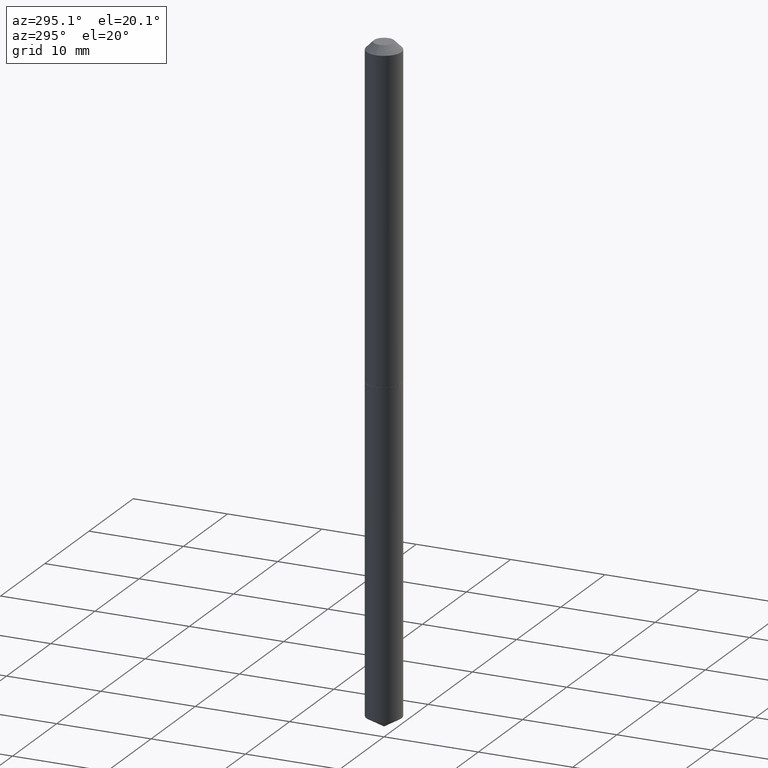
[diagram: clean part render]
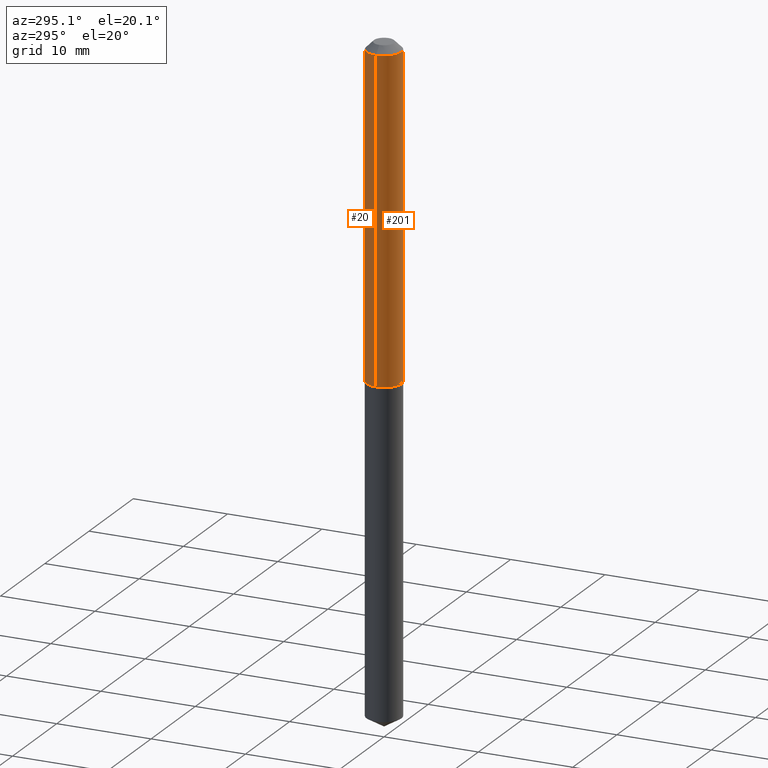
[diagram: same view with one multi-face feature highlighted, each face labeled with its STEP entity id]
A machine part, auxiliary view. The highlighted faces form ONE feature: a constant-radius fillet chain: 2 tangent blend faces with common blend radius 1.8504 mm. The faces share edges in the B-rep.
Their STEP definitions:
[1] entity #201 (Cylinder):
#14 = AXIS2_PLACEMENT_3D ( 'NONE', #383, #228, #76 ) ;
#23 = LINE ( 'NONE', #356, #257 ) ;
#34 = ORIENTED_EDGE ( 'NONE', *, *, #236, .T. ) ;
#39 = CIRCLE ( 'NONE', #123, 0.07285000000000001197 ) ;
#48 = EDGE_CURVE ( 'NONE', #253, #216, #39, .T. ) ;
#54 = CIRCLE ( 'NONE', #212, 0.07285000000000016462 ) ;
#71 = CARTESIAN_POINT ( 'NONE',  ( 7.642090019328604414E-31, -1.091087918388490513E-16, -0.03125000000000021511 ) ) ;
#76 = DIRECTION ( 'NONE',  ( 1.000000000000000000, -6.982962677686266711E-15, 4.876176775795936353E-29 ) ) ;
#78 = CYLINDRICAL_SURFACE ( 'NONE', #14, 0.07285000000000008136 ) ;
#100 = CARTESIAN_POINT ( 'NONE',  ( -0.07285000000000008136, 5.176303830012335635E-16, -3.583444213250702632E-30 ) ) ;
#102 = EDGE_CURVE ( 'NONE', #180, #253, #369, .T. ) ;
#108 = FACE_OUTER_BOUND ( 'NONE', #275, .T. ) ;
#110 = EDGE_CURVE ( 'NONE', #180, #222, #54, .T. ) ;
#123 = AXIS2_PLACEMENT_3D ( 'NONE', #71, #308, #160 ) ;
#131 = DIRECTION ( 'NONE',  ( 1.000000000000000000, -6.982962677686262766E-15, 0.000000000000000000 ) ) ;
#149 = ORIENTED_EDGE ( 'NONE', *, *, #102, .F. ) ;
#158 = ORIENTED_EDGE ( 'NONE', *, *, #110, .T. ) ;
#160 = DIRECTION ( 'NONE',  ( 1.000000000000000000, -6.982962677686265922E-15, 0.000000000000000000 ) ) ;
#175 = CARTESIAN_POINT ( 'NONE',  ( -0.07285000000000001197, -1.921082045147231496E-15, -0.03125000000000021511 ) ) ;
#180 = VERTEX_POINT ( 'NONE', #381 ) ;
#201 = ADVANCED_FACE ( 'NONE', ( #108 ), #78, .T. ) ;
#212 = AXIS2_PLACEMENT_3D ( 'NONE', #224, #285, #131 ) ;
#216 = VERTEX_POINT ( 'NONE', #296 ) ;
#222 = VERTEX_POINT ( 'NONE', #294 ) ;
#224 = CARTESIAN_POINT ( 'NONE',  ( 3.339776748607040525E-29, -4.768316064458083385E-15, -1.365699999999999914 ) ) ;
#228 = DIRECTION ( 'NONE',  ( -2.445468806185136597E-29, 3.491481338843145583E-15, 1.000000000000000000 ) ) ;
#236 = EDGE_CURVE ( 'NONE', #222, #216, #23, .T. ) ;
#241 = ORIENTED_EDGE ( 'NONE', *, *, #48, .F. ) ;
#253 = VERTEX_POINT ( 'NONE', #175 ) ;
#257 = VECTOR ( 'NONE', #387, 39.37007874015748143 ) ;
#275 = EDGE_LOOP ( 'NONE', ( #149, #158, #34, #241 ) ) ;
#284 = VECTOR ( 'NONE', #340, 39.37007874015748143 ) ;
#285 = DIRECTION ( 'NONE',  ( -2.445468806185136597E-29, 3.491481338843145583E-15, 1.000000000000000000 ) ) ;
#294 = CARTESIAN_POINT ( 'NONE',  ( 0.07285000000000016462, -5.277024895527528458E-15, -1.365699999999999914 ) ) ;
#296 = CARTESIAN_POINT ( 'NONE',  ( 0.07285000000000001197, -6.178176229082936802E-16, -0.03125000000000021511 ) ) ;
#308 = DIRECTION ( 'NONE',  ( -2.445468806185136597E-29, 3.491481338843145583E-15, 1.000000000000000000 ) ) ;
#340 = DIRECTION ( 'NONE',  ( -2.445468806185136877E-29, 3.491481338843145188E-15, 1.000000000000000000 ) ) ;
#356 = CARTESIAN_POINT ( 'NONE',  ( 0.07285000000000008136, -5.087088310694450726E-16, 3.552294781167343726E-30 ) ) ;
#369 = LINE ( 'NONE', #100, #284 ) ;
#381 = CARTESIAN_POINT ( 'NONE',  ( -0.07285000000000016462, -4.250685681456849033E-15, -1.365699999999999914 ) ) ;
#383 = CARTESIAN_POINT ( 'NONE',  ( 0.000000000000000000, 0.000000000000000000, 0.000000000000000000 ) ) ;
#387 = DIRECTION ( 'NONE',  ( -2.445468806185136877E-29, 3.491481338843145188E-15, 1.000000000000000000 ) ) ;
[2] entity #20 (Cylinder):
#6 = CARTESIAN_POINT ( 'NONE',  ( 3.339776748607040525E-29, -4.768316064458083385E-15, -1.365699999999999914 ) ) ;
#15 = ORIENTED_EDGE ( 'NONE', *, *, #314, .T. ) ;
#20 = ADVANCED_FACE ( 'NONE', ( #130 ), #317, .T. ) ;
#23 = LINE ( 'NONE', #356, #257 ) ;
#55 = DIRECTION ( 'NONE',  ( 1.000000000000000000, -6.982962677686262766E-15, 0.000000000000000000 ) ) ;
#59 = DIRECTION ( 'NONE',  ( -2.445468806185136597E-29, 3.491481338843145583E-15, 1.000000000000000000 ) ) ;
#93 = ORIENTED_EDGE ( 'NONE', *, *, #390, .F. ) ;
#98 = CIRCLE ( 'NONE', #198, 0.07285000000000016462 ) ;
#100 = CARTESIAN_POINT ( 'NONE',  ( -0.07285000000000008136, 5.176303830012335635E-16, -3.583444213250702632E-30 ) ) ;
#102 = EDGE_CURVE ( 'NONE', #180, #253, #369, .T. ) ;
#126 = DIRECTION ( 'NONE',  ( 1.000000000000000000, -6.982962677686266711E-15, 4.876176775795936353E-29 ) ) ;
#130 = FACE_OUTER_BOUND ( 'NONE', #211, .T. ) ;
#141 = DIRECTION ( 'NONE',  ( -2.445468806185136597E-29, 3.491481338843145583E-15, 1.000000000000000000 ) ) ;
#175 = CARTESIAN_POINT ( 'NONE',  ( -0.07285000000000001197, -1.921082045147231496E-15, -0.03125000000000021511 ) ) ;
#180 = VERTEX_POINT ( 'NONE', #381 ) ;
#184 = ORIENTED_EDGE ( 'NONE', *, *, #236, .F. ) ;
#192 = CARTESIAN_POINT ( 'NONE',  ( 0.000000000000000000, 0.000000000000000000, 0.000000000000000000 ) ) ;
#198 = AXIS2_PLACEMENT_3D ( 'NONE', #6, #59, #55 ) ;
#199 = CIRCLE ( 'NONE', #297, 0.07285000000000001197 ) ;
#211 = EDGE_LOOP ( 'NONE', ( #15, #299, #93, #184 ) ) ;
#216 = VERTEX_POINT ( 'NONE', #296 ) ;
#222 = VERTEX_POINT ( 'NONE', #294 ) ;
#225 = DIRECTION ( 'NONE',  ( -2.445468806185136597E-29, 3.491481338843145583E-15, 1.000000000000000000 ) ) ;
#232 = AXIS2_PLACEMENT_3D ( 'NONE', #192, #225, #126 ) ;
#236 = EDGE_CURVE ( 'NONE', #222, #216, #23, .T. ) ;
#253 = VERTEX_POINT ( 'NONE', #175 ) ;
#257 = VECTOR ( 'NONE', #387, 39.37007874015748143 ) ;
#284 = VECTOR ( 'NONE', #340, 39.37007874015748143 ) ;
#294 = CARTESIAN_POINT ( 'NONE',  ( 0.07285000000000016462, -5.277024895527528458E-15, -1.365699999999999914 ) ) ;
#296 = CARTESIAN_POINT ( 'NONE',  ( 0.07285000000000001197, -6.178176229082936802E-16, -0.03125000000000021511 ) ) ;
#297 = AXIS2_PLACEMENT_3D ( 'NONE', #382, #141, #380 ) ;
#299 = ORIENTED_EDGE ( 'NONE', *, *, #102, .T. ) ;
#314 = EDGE_CURVE ( 'NONE', #222, #180, #98, .T. ) ;
#317 = CYLINDRICAL_SURFACE ( 'NONE', #232, 0.07285000000000008136 ) ;
#340 = DIRECTION ( 'NONE',  ( -2.445468806185136877E-29, 3.491481338843145188E-15, 1.000000000000000000 ) ) ;
#356 = CARTESIAN_POINT ( 'NONE',  ( 0.07285000000000008136, -5.087088310694450726E-16, 3.552294781167343726E-30 ) ) ;
#369 = LINE ( 'NONE', #100, #284 ) ;
#380 = DIRECTION ( 'NONE',  ( 1.000000000000000000, -6.982962677686265922E-15, 0.000000000000000000 ) ) ;
#381 = CARTESIAN_POINT ( 'NONE',  ( -0.07285000000000016462, -4.250685681456849033E-15, -1.365699999999999914 ) ) ;
#382 = CARTESIAN_POINT ( 'NONE',  ( 7.642090019328604414E-31, -1.091087918388490513E-16, -0.03125000000000021511 ) ) ;
#387 = DIRECTION ( 'NONE',  ( -2.445468806185136877E-29, 3.491481338843145188E-15, 1.000000000000000000 ) ) ;
#390 = EDGE_CURVE ( 'NONE', #216, #253, #199, .T. ) ;